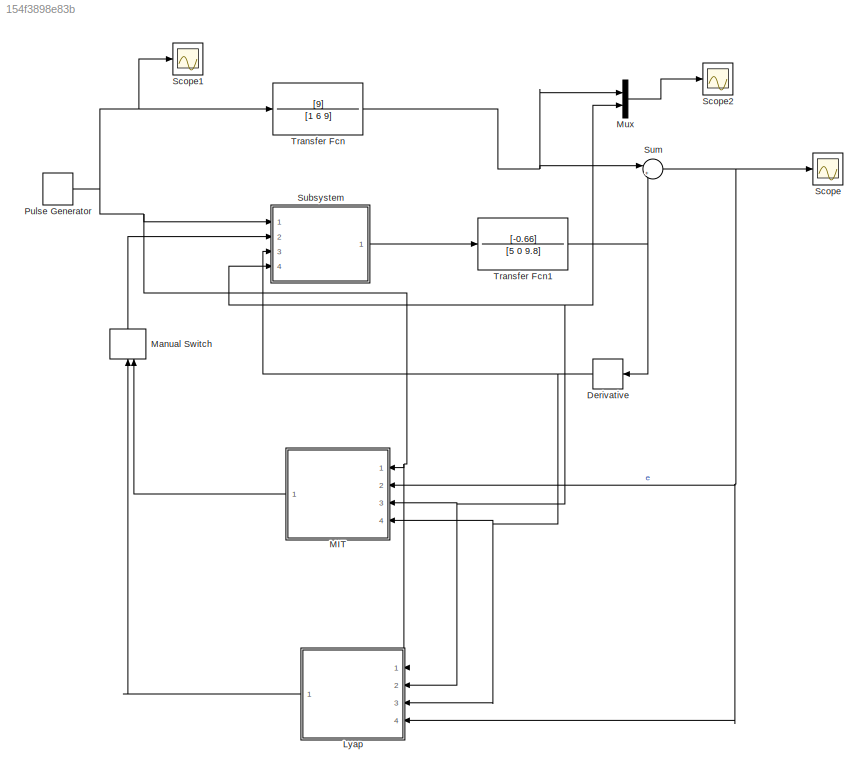
MODEL slx_154f3898e83b
KIND model
CONFIG AbsTol = auto
CONFIG EnableMultiTasking = off
CONFIG FixedStep = auto
CONFIG MaxStep = auto
CONFIG MinStep = auto
CONFIG RelTol = 1e-3
CONFIG SampleTimeConstraint = Unconstrained
CONFIG SolverName = VariableStepAuto
CONFIG StartTime = 0.0
CONFIG StopTime = 500
BLOCK [Derivative] Derivative
  NameLocation = top
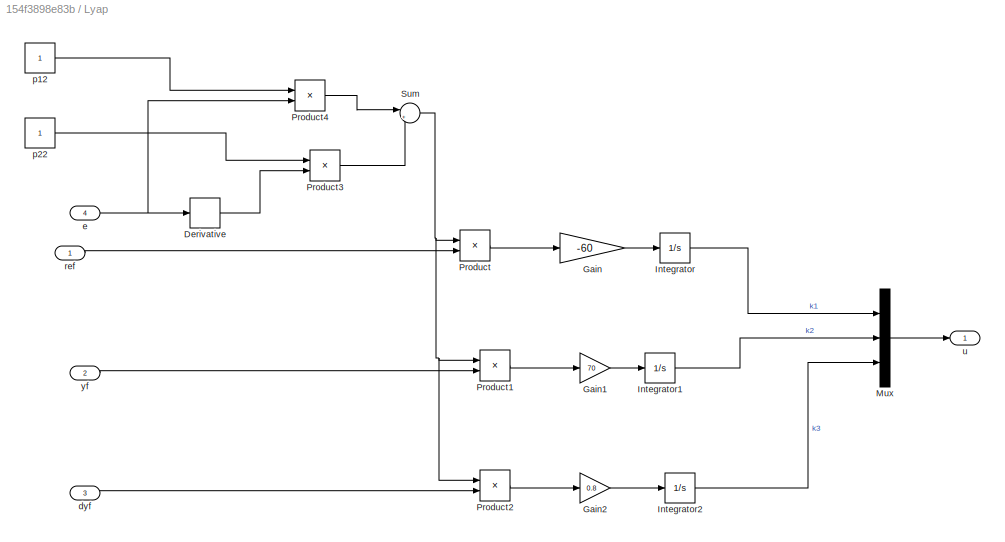
BLOCK [SubSystem] Lyap
  NameLocation = top
  Ports = [4, 1]
  RequestExecContextInheritance = off
BLOCK [Derivative] Lyap/Derivative
BLOCK [Gain] Lyap/Gain
  Gain = -60
BLOCK [Gain] Lyap/Gain1
  Gain = 70
BLOCK [Gain] Lyap/Gain2
  Gain = 0.8
BLOCK [Integrator] Lyap/Integrator
  Ports = [1, 1]
BLOCK [Integrator] Lyap/Integrator1
  Ports = [1, 1]
BLOCK [Integrator] Lyap/Integrator2
  Ports = [1, 1]
BLOCK [Mux] Lyap/Mux
  DisplayOption = bar
  Inputs = 3
  Ports = [3, 1]
BLOCK [Product] Lyap/Product
  Ports = [2, 1]
BLOCK [Product] Lyap/Product1
  Ports = [2, 1]
BLOCK [Product] Lyap/Product2
  Ports = [2, 1]
BLOCK [Product] Lyap/Product3
  Ports = [2, 1]
BLOCK [Product] Lyap/Product4
  Ports = [2, 1]
BLOCK [Sum] Lyap/Sum
  Inputs = |++
  Ports = [2, 1]
BLOCK [Inport] Lyap/dyf
  Port = 3
BLOCK [Inport] Lyap/e
  Port = 4
BLOCK [Constant] Lyap/p12
BLOCK [Constant] Lyap/p22
BLOCK [Inport] Lyap/ref
BLOCK [Outport] Lyap/u
BLOCK [Inport] Lyap/yf
  Port = 2
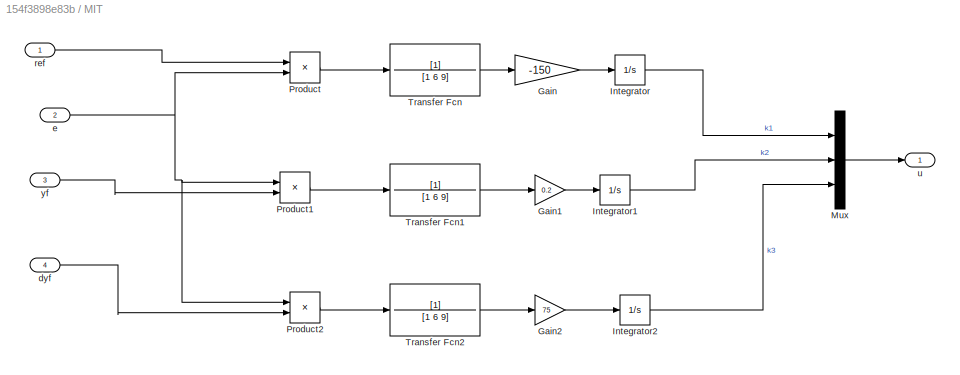
BLOCK [SubSystem] MIT
  NameLocation = top
  Ports = [4, 1]
  RequestExecContextInheritance = off
BLOCK [Gain] MIT/Gain
  Gain = -150
BLOCK [Gain] MIT/Gain1
  Gain = 0.2
BLOCK [Gain] MIT/Gain2
  Gain = 75
BLOCK [Integrator] MIT/Integrator
  Ports = [1, 1]
BLOCK [Integrator] MIT/Integrator1
  Ports = [1, 1]
BLOCK [Integrator] MIT/Integrator2
  Ports = [1, 1]
BLOCK [Mux] MIT/Mux
  DisplayOption = bar
  Inputs = 3
  Ports = [3, 1]
BLOCK [Product] MIT/Product
  Ports = [2, 1]
BLOCK [Product] MIT/Product1
  Ports = [2, 1]
BLOCK [Product] MIT/Product2
  Ports = [2, 1]
BLOCK [TransferFcn] MIT/Transfer Fcn
  Denominator = [1 6 9]
BLOCK [TransferFcn] MIT/Transfer Fcn1
  Denominator = [1 6 9]
BLOCK [TransferFcn] MIT/Transfer Fcn2
  Denominator = [1 6 9]
BLOCK [Inport] MIT/dyf
  Port = 4
BLOCK [Inport] MIT/e
  Port = 2
BLOCK [Inport] MIT/ref
BLOCK [Outport] MIT/u
BLOCK [Inport] MIT/yf
  Port = 3
BLOCK [ManualSwitch] Manual Switch
  NameLocation = right
BLOCK [Mux] Mux
  DisplayOption = bar
  Inputs = 2
  Ports = [2, 1]
BLOCK [DiscretePulseGenerator] Pulse Generator
  Amplitude = 5
  Period = 50
  Ports = [0, 1]
  PulseType = Time based
  PulseWidth = 50
BLOCK [Scope] Scope
  Floating = off
  NumInputPorts = 1
  Ports = [1]
  ScopeSpecificationString = Simulink.scopes.TimeScopeBlockCfg('CurrentConfiguration', extmgr.ConfigurationSet(extmgr.Configuration('Core','General UI',true),extmgr.Configuration('Core','Source UI',true),extmgr.Configuration('Sources','WiredSimulink',true),extmgr.Configuration('Visuals','Time Domain',true,'SerializedDisplays',{struct('MinYLimReal','-0.81932','MaxYLimReal','0.94137','YLabelReal','','MinYLimMag','0.00000','MaxY...<+1321ch>
BLOCK [Scope] Scope1
  Floating = off
  NumInputPorts = 1
  Ports = [1]
  ScopeSpecificationString = Simulink.scopes.TimeScopeBlockCfg('CurrentConfiguration', extmgr.ConfigurationSet(extmgr.Configuration('Core','General UI',true),extmgr.Configuration('Core','Source UI',true),extmgr.Configuration('Sources','WiredSimulink',true,'DataLoggingVariableName','ScopeData1'),extmgr.Configuration('Visuals','Time Domain',true,'SerializedDisplays',{struct('MinYLimReal','-0.625','MaxYLimReal','5.625','YLabelRe...<+1362ch>
BLOCK [Scope] Scope2
  Floating = off
  NumInputPorts = 1
  Ports = [1]
  ScopeSpecificationString = Simulink.scopes.TimeScopeBlockCfg('CurrentConfiguration', extmgr.ConfigurationSet(extmgr.Configuration('Core','General UI',true),extmgr.Configuration('Core','Source UI',true),extmgr.Configuration('Sources','WiredSimulink',true,'DataLoggingVariableName','ScopeData2'),extmgr.Configuration('Visuals','Time Domain',true,'SerializedDisplays',{struct('MinYLimReal','-0.65224','MaxYLimReal','5.84885','YLab...<+1416ch>
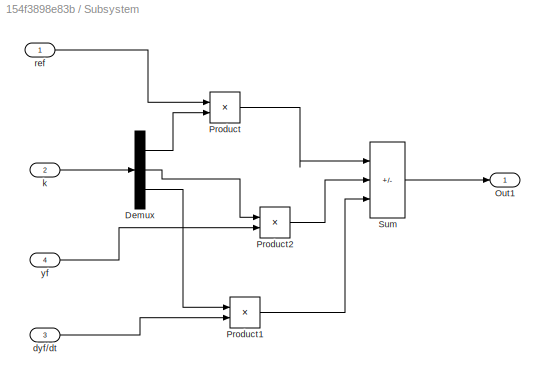
BLOCK [SubSystem] Subsystem
  Ports = [4, 1]
  RequestExecContextInheritance = off
BLOCK [Demux] Subsystem/Demux
  Outputs = 3
  Ports = [1, 3]
BLOCK [Outport] Subsystem/Out1
BLOCK [Product] Subsystem/Product
  Ports = [2, 1]
BLOCK [Product] Subsystem/Product1
  Ports = [2, 1]
BLOCK [Product] Subsystem/Product2
  Ports = [2, 1]
BLOCK [Sum] Subsystem/Sum
  IconShape = rectangular
  Inputs = |+--
  Ports = [3, 1]
BLOCK [Inport] Subsystem/dyf//dt
  Port = 3
BLOCK [Inport] Subsystem/k
  Port = 2
BLOCK [Inport] Subsystem/ref
BLOCK [Inport] Subsystem/yf
  Port = 4
BLOCK [Sum] Sum
  Inputs = |+-
  Ports = [2, 1]
BLOCK [TransferFcn] Transfer Fcn
  Denominator = [1 6 9]
  Numerator = [9]
BLOCK [TransferFcn] Transfer Fcn1
  Denominator = [5 0 9.8]
  Numerator = [-0.66]
NET Derivative:1 -> Lyap:3, MIT:4, Subsystem:3
LINE Lyap/Derivative:1 -> Lyap/Product3:2
LINE Lyap/Gain1:1 -> Lyap/Integrator1:1
LINE Lyap/Gain2:1 -> Lyap/Integrator2:1
LINE Lyap/Gain:1 -> Lyap/Integrator:1
LINE Lyap/Integrator1:1 -> Lyap/Mux:2
LINE Lyap/Integrator2:1 -> Lyap/Mux:3
LINE Lyap/Integrator:1 -> Lyap/Mux:1
LINE Lyap/Mux:1 -> Lyap/u:1
LINE Lyap/Product1:1 -> Lyap/Gain1:1
LINE Lyap/Product2:1 -> Lyap/Gain2:1
LINE Lyap/Product3:1 -> Lyap/Sum:2
LINE Lyap/Product4:1 -> Lyap/Sum:1
LINE Lyap/Product:1 -> Lyap/Gain:1
NET Lyap/Sum:1 -> Lyap/Product1:1, Lyap/Product2:1, Lyap/Product:1
LINE Lyap/dyf:1 -> Lyap/Product2:2
NET Lyap/e:1 -> Lyap/Derivative:1, Lyap/Product4:2
LINE Lyap/p12:1 -> Lyap/Product4:1
LINE Lyap/p22:1 -> Lyap/Product3:1
LINE Lyap/ref:1 -> Lyap/Product:2
LINE Lyap/yf:1 -> Lyap/Product1:2
LINE Lyap:1 -> Manual Switch:1
LINE MIT/Gain1:1 -> MIT/Integrator1:1
LINE MIT/Gain2:1 -> MIT/Integrator2:1
LINE MIT/Gain:1 -> MIT/Integrator:1
LINE MIT/Integrator1:1 -> MIT/Mux:2
LINE MIT/Integrator2:1 -> MIT/Mux:3
LINE MIT/Integrator:1 -> MIT/Mux:1
LINE MIT/Mux:1 -> MIT/u:1
LINE MIT/Product1:1 -> MIT/Transfer Fcn1:1
LINE MIT/Product2:1 -> MIT/Transfer Fcn2:1
LINE MIT/Product:1 -> MIT/Transfer Fcn:1
LINE MIT/Transfer Fcn1:1 -> MIT/Gain1:1
LINE MIT/Transfer Fcn2:1 -> MIT/Gain2:1
LINE MIT/Transfer Fcn:1 -> MIT/Gain:1
LINE MIT/dyf:1 -> MIT/Product2:2
NET MIT/e:1 -> MIT/Product1:1, MIT/Product2:1, MIT/Product:2
LINE MIT/ref:1 -> MIT/Product:1
LINE MIT/yf:1 -> MIT/Product1:2
LINE MIT:1 -> Manual Switch:2
LINE Manual Switch:1 -> Subsystem:2
LINE Mux:1 -> Scope2:1
NET Pulse Generator:1 -> Lyap:1, MIT:1, Scope1:1, Subsystem:1, Transfer Fcn:1
LINE Subsystem/Demux:1 -> Subsystem/Product:2
LINE Subsystem/Demux:2 -> Subsystem/Product2:1
LINE Subsystem/Demux:3 -> Subsystem/Product1:1
LINE Subsystem/Product1:1 -> Subsystem/Sum:3
LINE Subsystem/Product2:1 -> Subsystem/Sum:2
LINE Subsystem/Product:1 -> Subsystem/Sum:1
LINE Subsystem/Sum:1 -> Subsystem/Out1:1
LINE Subsystem/dyf//dt:1 -> Subsystem/Product1:2
LINE Subsystem/k:1 -> Subsystem/Demux:1
LINE Subsystem/ref:1 -> Subsystem/Product:1
LINE Subsystem/yf:1 -> Subsystem/Product2:2
LINE Subsystem:1 -> Transfer Fcn1:1
NET Sum:1 -> Lyap:4, MIT:2, Scope:1
NET Transfer Fcn1:1 -> Derivative:1, Lyap:2, MIT:3, Mux:2, Subsystem:4, Sum:2
NET Transfer Fcn:1 -> Mux:1, Sum:1
note: NET lines group one-source signal fan-out (src -> all destinations, sorted); 1:1 wires keep LINE
